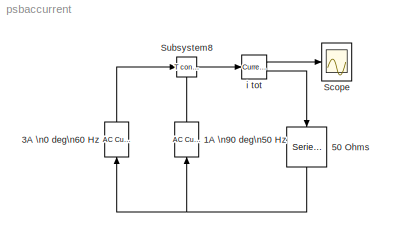
MODEL psbaccurrent
KIND model
BLOCK [Reference] 1A \n90 deg\n50 Hz  REF=powerlib2/Electrical\nSources/AC Current Source
  A = 1
  F = 50
  P = 90
  PSBOutputType = 1
  Ports = [1, 1]
  SourceBlock = powerlib2/Electrical\nSources/AC Current Source
  SourceType = AC Current Source
  Tag = PoWeRsYsTeMbLoCk
  mesure = None
  stime = 0
BLOCK [Reference] 3A \n0 deg\n60 Hz  REF=powerlib2/Electrical\nSources/AC Current Source
  A = 3
  F = 60
  P = 0
  PSBOutputType = 1
  Ports = [1, 1]
  SourceBlock = powerlib2/Electrical\nSources/AC Current Source
  SourceType = AC Current Source
  Tag = PoWeRsYsTeMbLoCk
  mesure = None
  stime = 0
BLOCK [Reference] 50 Ohms   REF=powerlib2/Elements/Series RLC Branch
  PSBOutputType = 1
  Ports = [1, 1]
  SourceBlock = powerlib2/Elements/Series RLC Branch
  SourceType = Series RLC Branch
  Tag = PoWeRsYsTeMbLoCk
  a = 50
  b = 0
  c = inf
  mesure = None
BLOCK [Scope] Scope
  DataFormat = Array
  NumInputPorts = 1
  Ports = [1]
  TickLabels = on
  TimeRange = 0.5
BLOCK [Reference] Subsystem8  REF=powerlib2/Connectors/T connector
  PSBOutputType = 1
  Ports = [1, 1, 1]
  SourceBlock = powerlib2/Connectors/T connector
  SourceType = Bus Bar
  Tag = PoWeRsYsTeMbLoCk
BLOCK [Reference] i tot  REF=powerlib2/Measurements/Current Measurement
  PSBOutputType = 01
  PSBequivalent = 1
  Ports = [1, 2]
  SourceBlock = powerlib2/Measurements/Current Measurement
  SourceType = Current Measurement
  Tag = PoWeRsYsTeMmEaSuReMeNt
LINE 1A \n90 deg\n50 Hz:1 -> Subsystem8:enable
LINE 3A \n0 deg\n60 Hz:1 -> Subsystem8:1
NET 50 Ohms :1 -> 1A \n90 deg\n50 Hz:1, 3A \n0 deg\n60 Hz:1
LINE Subsystem8:1 -> i tot:1
LINE i tot:1 -> Scope:1
LINE i tot:2 -> 50 Ohms :1
note: NET lines group one-source signal fan-out (src -> all destinations, sorted); 1:1 wires keep LINE
